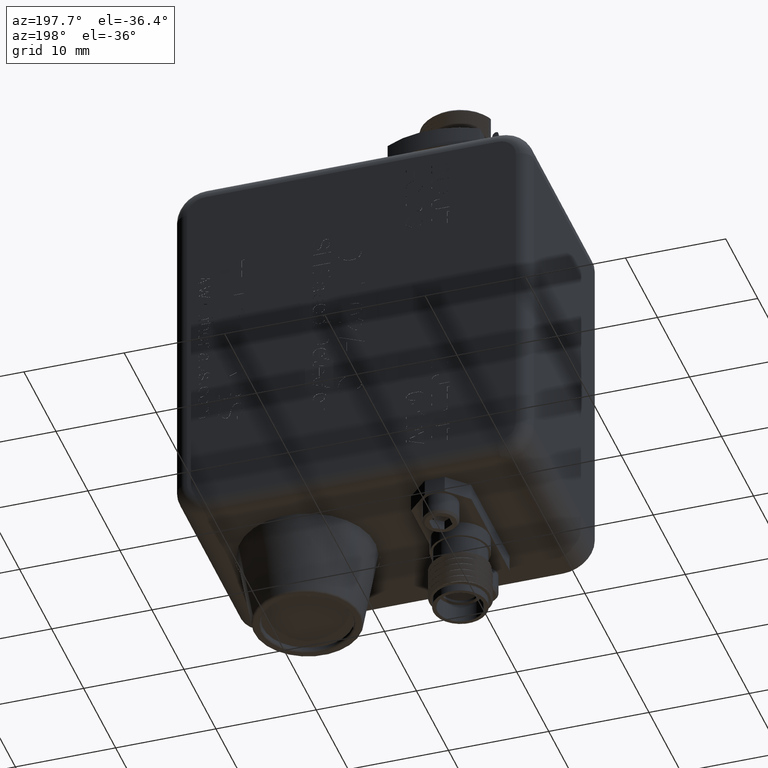
[diagram: clean part render]
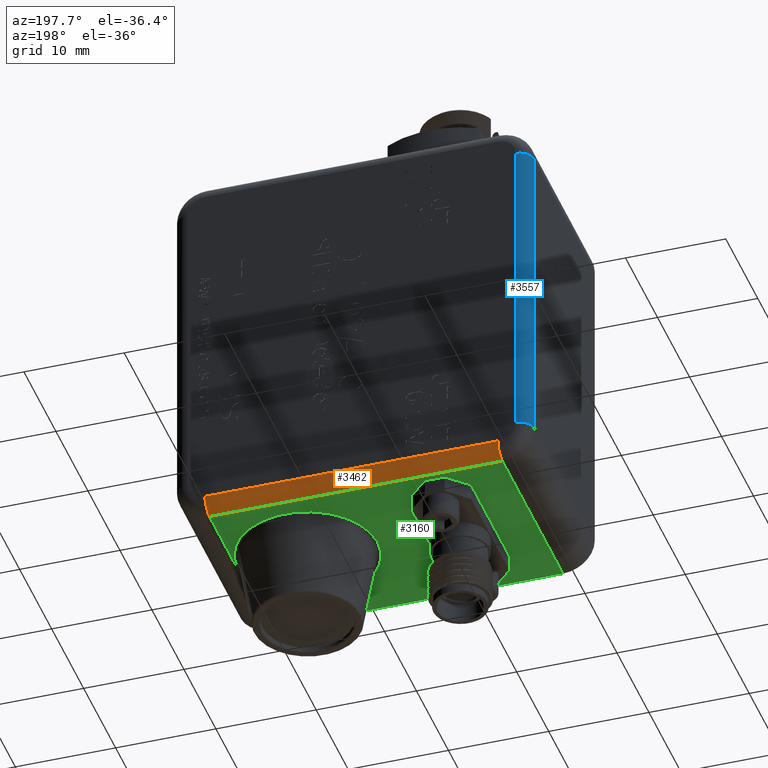
[diagram: same view with three faces highlighted in distinct colors, each labeled with its STEP entity id]
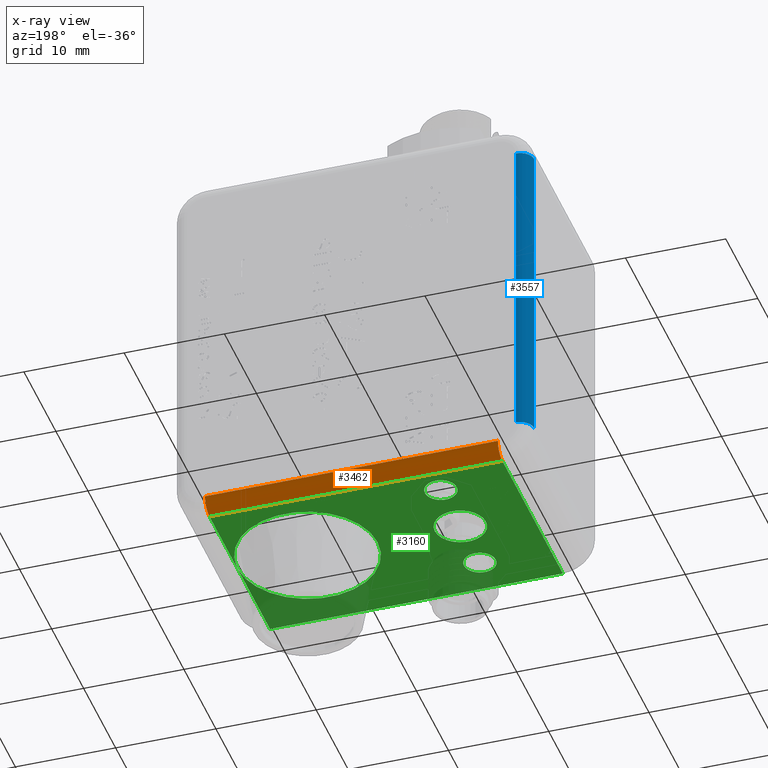
[diagram: x-ray of the same camera — body ghosted, the three highlighted faces saturated]
A machine part, auxiliary view with three faces highlighted in distinct colors.
The next image is the same camera in x-ray (body ghosted, the three faces saturated) — at least one of them is partly hidden behind the body in this view.
Their STEP definitions:

[orange] entity #3462 — the highlighted cylindrical surface (edge-blend (fillet) strip) has radius 1.397 mm, axis along (1, 0, -0).
#2883 = VERTEX_POINT ( 'NONE', #26914 ) ;
#3140 = VERTEX_POINT ( 'NONE', #27869 ) ;
#3209 = EDGE_CURVE ( 'NONE', #2883, #3140, #28323, .T. ) ;
#3391 = EDGE_CURVE ( 'NONE', #3140, #3394, #29102, .T. ) ;
#3394 = VERTEX_POINT ( 'NONE', #29155 ) ;
#3462 = ADVANCED_FACE ( 'NONE', ( #29323 ), #29386, .T. ) ;
#3463 = EDGE_LOOP ( 'NONE', ( #3466, #3472, #3476, #3478 ) ) ;
#3466 = ORIENTED_EDGE ( 'NONE', *, *, #3468, .T. ) ;
#3468 = EDGE_CURVE ( 'NONE', #2883, #3469, #29431, .T. ) ;
#3469 = VERTEX_POINT ( 'NONE', #29422 ) ;
#3472 = ORIENTED_EDGE ( 'NONE', *, *, #3474, .F. ) ;
#3474 = EDGE_CURVE ( 'NONE', #3394, #3469, #29412, .T. ) ;
#3476 = ORIENTED_EDGE ( 'NONE', *, *, #3391, .F. ) ;
#3478 = ORIENTED_EDGE ( 'NONE', *, *, #3209, .F. ) ;
#26914 = CARTESIAN_POINT ( 'NONE',  ( -0.5749999999999998400, 0.7450000000000001100, -1.499999999999999800 ) ) ;
#27869 = CARTESIAN_POINT ( 'NONE',  ( 0.5750000000000000700, 0.7450000000000001100, -1.500000000000000200 ) ) ;
#28319 = DIRECTION ( 'NONE',  ( 1.000000000000000000, 0.0000000000000000000, -1.951319995474473700E-016 ) ) ;
#28320 = VECTOR ( 'NONE', #28319, 39.37007874015748100 ) ;
#28322 = CARTESIAN_POINT ( 'NONE',  ( 0.5750000000000000700, 0.7450000000000001100, -1.500000000000000200 ) ) ;
#28323 = LINE ( 'NONE', #28322, #28320 ) ;
#29095 = DIRECTION ( 'NONE',  ( 0.0000000000000000000, 0.0000000000000000000, -1.000000000000000000 ) ) ;
#29097 = DIRECTION ( 'NONE',  ( 1.000000000000000000, 0.0000000000000000000, 0.0000000000000000000 ) ) ;
#29099 = CARTESIAN_POINT ( 'NONE',  ( 0.5750000000000000700, 0.7450000000000001100, -1.445000000000000100 ) ) ;
#29101 = AXIS2_PLACEMENT_3D ( 'NONE', #29099, #29097, #29095 ) ;
#29102 = CIRCLE ( 'NONE', #29101, 0.05500000000000009700 ) ;
#29155 = CARTESIAN_POINT ( 'NONE',  ( 0.5750000000000000700, 0.8000000000000000400, -1.445000000000000300 ) ) ;
#29323 = FACE_OUTER_BOUND ( 'NONE', #3463, .T. ) ;
#29382 = DIRECTION ( 'NONE',  ( 0.0000000000000000000, 0.0000000000000000000, -1.000000000000000000 ) ) ;
#29384 = DIRECTION ( 'NONE',  ( 1.000000000000000000, 0.0000000000000000000, -1.951319995474473700E-016 ) ) ;
#29385 = AXIS2_PLACEMENT_3D ( 'NONE', #29389, #29384, #29382 ) ;
#29386 = CYLINDRICAL_SURFACE ( 'NONE', #29385, 0.05500000000000009700 ) ;
#29389 = CARTESIAN_POINT ( 'NONE',  ( -0.7000000000000001800, 0.7450000000000001100, -1.444999999999999800 ) ) ;
#29408 = DIRECTION ( 'NONE',  ( -1.000000000000000000, 0.0000000000000000000, 1.951319995474473700E-016 ) ) ;
#29409 = VECTOR ( 'NONE', #29408, 39.37007874015748100 ) ;
#29410 = CARTESIAN_POINT ( 'NONE',  ( -0.5749999999999998400, 0.8000000000000000400, -1.444999999999999800 ) ) ;
#29412 = LINE ( 'NONE', #29410, #29409 ) ;
#29422 = CARTESIAN_POINT ( 'NONE',  ( -0.5749999999999998400, 0.8000000000000000400, -1.444999999999999800 ) ) ;
#29423 = DIRECTION ( 'NONE',  ( 0.0000000000000000000, 0.0000000000000000000, -1.000000000000000000 ) ) ;
#29425 = DIRECTION ( 'NONE',  ( 1.000000000000000000, 0.0000000000000000000, 0.0000000000000000000 ) ) ;
#29427 = CARTESIAN_POINT ( 'NONE',  ( -0.5749999999999998400, 0.7450000000000001100, -1.444999999999999800 ) ) ;
#29429 = AXIS2_PLACEMENT_3D ( 'NONE', #29427, #29425, #29423 ) ;
#29431 = CIRCLE ( 'NONE', #29429, 0.05500000000000009700 ) ;

[blue] entity #3557 — the highlighted cylindrical surface (edge-blend (fillet) strip) has radius 1.397 mm, axis along (0, 0, -1).
#2828 = VERTEX_POINT ( 'NONE', #26802 ) ;
#2912 = EDGE_CURVE ( 'NONE', #3000, #2828, #27127, .T. ) ;
#3000 = VERTEX_POINT ( 'NONE', #27559 ) ;
#3430 = EDGE_LOOP ( 'NONE', ( #3431, #3435, #3613, #3492 ) ) ;
#3431 = ORIENTED_EDGE ( 'NONE', *, *, #3543, .T. ) ;
#3435 = ORIENTED_EDGE ( 'NONE', *, *, #2912, .F. ) ;
#3492 = ORIENTED_EDGE ( 'NONE', *, *, #3494, .F. ) ;
#3494 = EDGE_CURVE ( 'NONE', #3547, #3619, #29560, .T. ) ;
#3543 = EDGE_CURVE ( 'NONE', #3547, #2828, #29718, .T. ) ;
#3547 = VERTEX_POINT ( 'NONE', #29708 ) ;
#3557 = ADVANCED_FACE ( 'NONE', ( #29757 ), #29813, .T. ) ;
#3613 = ORIENTED_EDGE ( 'NONE', *, *, #3614, .F. ) ;
#3614 = EDGE_CURVE ( 'NONE', #3619, #3000, #30302, .T. ) ;
#3619 = VERTEX_POINT ( 'NONE', #30294 ) ;
#26802 = CARTESIAN_POINT ( 'NONE',  ( -0.6999999999999999600, 0.7450000000000001100, -1.375000000000000000 ) ) ;
#27124 = DIRECTION ( 'NONE',  ( 0.0000000000000000000, 0.0000000000000000000, -1.000000000000000000 ) ) ;
#27125 = VECTOR ( 'NONE', #27124, 39.37007874015748100 ) ;
#27126 = CARTESIAN_POINT ( 'NONE',  ( -0.6999999999999999600, 0.7450000000000001100, -1.375000000000000000 ) ) ;
#27127 = LINE ( 'NONE', #27126, #27125 ) ;
#27559 = CARTESIAN_POINT ( 'NONE',  ( -0.6999999999999999600, 0.7450000000000001100, -0.1249999999999999000 ) ) ;
#29557 = DIRECTION ( 'NONE',  ( 0.0000000000000000000, 0.0000000000000000000, 1.000000000000000000 ) ) ;
#29558 = VECTOR ( 'NONE', #29557, 39.37007874015748100 ) ;
#29559 = CARTESIAN_POINT ( 'NONE',  ( -0.6449999999999999100, 0.8000000000000000400, -0.1249999999999999000 ) ) ;
#29560 = LINE ( 'NONE', #29559, #29558 ) ;
#29708 = CARTESIAN_POINT ( 'NONE',  ( -0.6449999999999998000, 0.8000000000000000400, -1.375000000000000000 ) ) ;
#29710 = DIRECTION ( 'NONE',  ( 1.000000000000000000, 0.0000000000000000000, 0.0000000000000000000 ) ) ;
#29712 = DIRECTION ( 'NONE',  ( 0.0000000000000000000, 0.0000000000000000000, 1.000000000000000000 ) ) ;
#29714 = CARTESIAN_POINT ( 'NONE',  ( -0.6449999999999998000, 0.7450000000000001100, -1.375000000000000000 ) ) ;
#29716 = AXIS2_PLACEMENT_3D ( 'NONE', #29714, #29712, #29710 ) ;
#29718 = CIRCLE ( 'NONE', #29716, 0.05500000000000002800 ) ;
#29757 = FACE_OUTER_BOUND ( 'NONE', #3430, .T. ) ;
#29808 = DIRECTION ( 'NONE',  ( -1.000000000000000000, 0.0000000000000000000, 0.0000000000000000000 ) ) ;
#29810 = DIRECTION ( 'NONE',  ( 0.0000000000000000000, 0.0000000000000000000, -1.000000000000000000 ) ) ;
#29811 = AXIS2_PLACEMENT_3D ( 'NONE', #29816, #29810, #29808 ) ;
#29813 = CYLINDRICAL_SURFACE ( 'NONE', #29811, 0.05499999999999995900 ) ;
#29816 = CARTESIAN_POINT ( 'NONE',  ( -0.6449999999999999100, 0.7450000000000001100, 0.0000000000000000000 ) ) ;
#30294 = CARTESIAN_POINT ( 'NONE',  ( -0.6449999999999999100, 0.8000000000000000400, -0.1249999999999999400 ) ) ;
#30296 = DIRECTION ( 'NONE',  ( 1.000000000000000000, 0.0000000000000000000, -9.313118160219073900E-016 ) ) ;
#30298 = DIRECTION ( 'NONE',  ( 9.313118160219085700E-016, 0.0000000000000000000, 1.000000000000000000 ) ) ;
#30300 = AXIS2_PLACEMENT_3D ( 'NONE', #30310, #30298, #30296 ) ;
#30302 = CIRCLE ( 'NONE', #30300, 0.05500000000000002800 ) ;
#30310 = CARTESIAN_POINT ( 'NONE',  ( -0.6449999999999999100, 0.7450000000000001100, -0.1249999999999999400 ) ) ;

[green] entity #3160 — the highlighted planar face has unit normal (0, 0, 1).
#2883 = VERTEX_POINT ( 'NONE', #26914 ) ;
#2888 = EDGE_CURVE ( 'NONE', #2890, #2883, #26912, .T. ) ;
#2890 = VERTEX_POINT ( 'NONE', #26901 ) ;
#2985 = EDGE_CURVE ( 'NONE', #2987, #2890, #27469, .T. ) ;
#2987 = VERTEX_POINT ( 'NONE', #27463 ) ;
#3024 = EDGE_CURVE ( 'NONE', #3026, #3027, #27773, .T. ) ;
#3026 = VERTEX_POINT ( 'NONE', #27764 ) ;
#3027 = VERTEX_POINT ( 'NONE', #27762 ) ;
#3031 = ORIENTED_EDGE ( 'NONE', *, *, #3034, .F. ) ;
#3034 = EDGE_CURVE ( 'NONE', #3027, #3026, #27757, .T. ) ;
#3038 = EDGE_LOOP ( 'NONE', ( #3041, #3095 ) ) ;
#3041 = ORIENTED_EDGE ( 'NONE', *, *, #3043, .F. ) ;
#3043 = EDGE_CURVE ( 'NONE', #3225, #3228, #27734, .T. ) ;
#3095 = ORIENTED_EDGE ( 'NONE', *, *, #3097, .F. ) ;
#3097 = EDGE_CURVE ( 'NONE', #3228, #3225, #27819, .T. ) ;
#3102 = EDGE_LOOP ( 'NONE', ( #3108, #3124 ) ) ;
#3108 = ORIENTED_EDGE ( 'NONE', *, *, #3112, .F. ) ;
#3112 = EDGE_CURVE ( 'NONE', #3114, #3119, #27791, .T. ) ;
#3114 = VERTEX_POINT ( 'NONE', #27905 ) ;
#3119 = VERTEX_POINT ( 'NONE', #27904 ) ;
#3124 = ORIENTED_EDGE ( 'NONE', *, *, #3128, .F. ) ;
#3128 = EDGE_CURVE ( 'NONE', #3119, #3114, #27892, .T. ) ;
#3130 = EDGE_LOOP ( 'NONE', ( #3135, #3183, #3189, #3193, #3199, #3203, #3208 ) ) ;
#3135 = ORIENTED_EDGE ( 'NONE', *, *, #3138, .T. ) ;
#3138 = EDGE_CURVE ( 'NONE', #3140, #3144, #27877, .T. ) ;
#3140 = VERTEX_POINT ( 'NONE', #27869 ) ;
#3144 = VERTEX_POINT ( 'NONE', #27856 ) ;
#3160 = ADVANCED_FACE ( 'NONE', ( #27926, #27925, #27923, #27922 ), #27998, .F. ) ;
#3163 = EDGE_LOOP ( 'NONE', ( #3167, #3031 ) ) ;
#3167 = ORIENTED_EDGE ( 'NONE', *, *, #3024, .F. ) ;
#3183 = ORIENTED_EDGE ( 'NONE', *, *, #3184, .F. ) ;
#3184 = EDGE_CURVE ( 'NONE', #3186, #3144, #28187, .T. ) ;
#3186 = VERTEX_POINT ( 'NONE', #28181 ) ;
#3189 = ORIENTED_EDGE ( 'NONE', *, *, #3191, .F. ) ;
#3191 = EDGE_CURVE ( 'NONE', #3144, #3186, #28168, .T. ) ;
#3193 = ORIENTED_EDGE ( 'NONE', *, *, #3196, .T. ) ;
#3196 = EDGE_CURVE ( 'NONE', #3144, #2987, #28149, .T. ) ;
#3199 = ORIENTED_EDGE ( 'NONE', *, *, #2985, .T. ) ;
#3203 = ORIENTED_EDGE ( 'NONE', *, *, #2888, .T. ) ;
#3208 = ORIENTED_EDGE ( 'NONE', *, *, #3209, .T. ) ;
#3209 = EDGE_CURVE ( 'NONE', #2883, #3140, #28323, .T. ) ;
#3225 = VERTEX_POINT ( 'NONE', #28369 ) ;
#3228 = VERTEX_POINT ( 'NONE', #28368 ) ;
#26833 = DIRECTION ( 'NONE',  ( -3.902639990948947500E-016, 0.0000000000000000000, -1.000000000000000000 ) ) ;
#26901 = CARTESIAN_POINT ( 'NONE',  ( -0.5749999999999998400, 0.0000000000000000000, -1.499999999999999800 ) ) ;
#26908 = DIRECTION ( 'NONE',  ( 0.0000000000000000000, 1.000000000000000000, 0.0000000000000000000 ) ) ;
#26909 = VECTOR ( 'NONE', #26908, 39.37007874015748100 ) ;
#26911 = CARTESIAN_POINT ( 'NONE',  ( -0.5749999999999998400, 0.8000000000000000400, -1.499999999999999800 ) ) ;
#26912 = LINE ( 'NONE', #26911, #26909 ) ;
#26914 = CARTESIAN_POINT ( 'NONE',  ( -0.5749999999999998400, 0.7450000000000001100, -1.499999999999999800 ) ) ;
#27463 = CARTESIAN_POINT ( 'NONE',  ( 0.5750000000000000700, 0.0000000000000000000, -1.500000000000000200 ) ) ;
#27464 = DIRECTION ( 'NONE',  ( -1.000000000000000000, 0.0000000000000000000, 1.951319995474473700E-016 ) ) ;
#27465 = VECTOR ( 'NONE', #27464, 39.37007874015748100 ) ;
#27467 = CARTESIAN_POINT ( 'NONE',  ( -0.6999999999999999600, 0.0000000000000000000, -1.499999999999999800 ) ) ;
#27469 = LINE ( 'NONE', #27467, #27465 ) ;
#27727 = DIRECTION ( 'NONE',  ( -1.000000000000000000, 0.0000000000000000000, 0.0000000000000000000 ) ) ;
#27729 = DIRECTION ( 'NONE',  ( -3.902639990948947500E-016, 0.0000000000000000000, -1.000000000000000000 ) ) ;
#27731 = CARTESIAN_POINT ( 'NONE',  ( -0.3000000000000003200, 0.6401574803149606700, -1.499999999999999800 ) ) ;
#27733 = AXIS2_PLACEMENT_3D ( 'NONE', #27731, #27729, #27727 ) ;
#27734 = CIRCLE ( 'NONE', #27733, 0.06249999999999997900 ) ;
#27753 = DIRECTION ( 'NONE',  ( -1.000000000000000000, 0.0000000000000000000, 0.0000000000000000000 ) ) ;
#27754 = DIRECTION ( 'NONE',  ( -3.902639990948947500E-016, 0.0000000000000000000, -1.000000000000000000 ) ) ;
#27755 = CARTESIAN_POINT ( 'NONE',  ( -0.3000000000000003200, 0.1598425196850394300, -1.499999999999999800 ) ) ;
#27756 = AXIS2_PLACEMENT_3D ( 'NONE', #27755, #27754, #27753 ) ;
#27757 = CIRCLE ( 'NONE', #27756, 0.06249999999999997900 ) ;
#27762 = CARTESIAN_POINT ( 'NONE',  ( -0.2375000000000003200, 0.1598425196850394300, -1.499999999999999800 ) ) ;
#27764 = CARTESIAN_POINT ( 'NONE',  ( -0.3625000000000003200, 0.1598425196850394300, -1.499999999999999800 ) ) ;
#27766 = DIRECTION ( 'NONE',  ( -1.000000000000000000, 0.0000000000000000000, 0.0000000000000000000 ) ) ;
#27768 = DIRECTION ( 'NONE',  ( -3.902639990948947500E-016, 0.0000000000000000000, -1.000000000000000000 ) ) ;
#27769 = CARTESIAN_POINT ( 'NONE',  ( -0.3000000000000003200, 0.1598425196850394300, -1.499999999999999800 ) ) ;
#27771 = AXIS2_PLACEMENT_3D ( 'NONE', #27769, #27768, #27766 ) ;
#27773 = CIRCLE ( 'NONE', #27771, 0.06249999999999997900 ) ;
#27789 = CARTESIAN_POINT ( 'NONE',  ( -0.3000000000000003200, 0.4000000000000000200, -1.499999999999999800 ) ) ;
#27790 = AXIS2_PLACEMENT_3D ( 'NONE', #27789, #26833, #27908 ) ;
#27791 = CIRCLE ( 'NONE', #27790, 0.09999999999999999200 ) ;
#27811 = DIRECTION ( 'NONE',  ( -1.000000000000000000, 0.0000000000000000000, 0.0000000000000000000 ) ) ;
#27814 = DIRECTION ( 'NONE',  ( -3.902639990948947500E-016, 0.0000000000000000000, -1.000000000000000000 ) ) ;
#27815 = CARTESIAN_POINT ( 'NONE',  ( -0.3000000000000003200, 0.6401574803149606700, -1.499999999999999800 ) ) ;
#27817 = AXIS2_PLACEMENT_3D ( 'NONE', #27815, #27814, #27811 ) ;
#27819 = CIRCLE ( 'NONE', #27817, 0.06249999999999997900 ) ;
#27856 = CARTESIAN_POINT ( 'NONE',  ( 0.5750000000000000700, 0.4000000000000000200, -1.500000000000000200 ) ) ;
#27869 = CARTESIAN_POINT ( 'NONE',  ( 0.5750000000000000700, 0.7450000000000001100, -1.500000000000000200 ) ) ;
#27872 = DIRECTION ( 'NONE',  ( 0.0000000000000000000, -1.000000000000000000, 0.0000000000000000000 ) ) ;
#27874 = VECTOR ( 'NONE', #27872, 39.37007874015748100 ) ;
#27875 = CARTESIAN_POINT ( 'NONE',  ( 0.5750000000000000700, 0.8000000000000000400, -1.500000000000000200 ) ) ;
#27877 = LINE ( 'NONE', #27875, #27874 ) ;
#27886 = DIRECTION ( 'NONE',  ( -1.000000000000000000, 0.0000000000000000000, 0.0000000000000000000 ) ) ;
#27888 = DIRECTION ( 'NONE',  ( -3.902639990948947500E-016, 0.0000000000000000000, -1.000000000000000000 ) ) ;
#27889 = CARTESIAN_POINT ( 'NONE',  ( -0.3000000000000003200, 0.4000000000000000200, -1.499999999999999800 ) ) ;
#27890 = AXIS2_PLACEMENT_3D ( 'NONE', #27889, #27888, #27886 ) ;
#27892 = CIRCLE ( 'NONE', #27890, 0.09999999999999999200 ) ;
#27904 = CARTESIAN_POINT ( 'NONE',  ( -0.2000000000000003200, 0.4000000000000000200, -1.499999999999999800 ) ) ;
#27905 = CARTESIAN_POINT ( 'NONE',  ( -0.4000000000000003000, 0.4000000000000000200, -1.499999999999999800 ) ) ;
#27908 = DIRECTION ( 'NONE',  ( -1.000000000000000000, 0.0000000000000000000, 0.0000000000000000000 ) ) ;
#27922 = FACE_OUTER_BOUND ( 'NONE', #3130, .T. ) ;
#27923 = FACE_BOUND ( 'NONE', #3102, .T. ) ;
#27925 = FACE_BOUND ( 'NONE', #3038, .T. ) ;
#27926 = FACE_BOUND ( 'NONE', #3163, .T. ) ;
#27986 = DIRECTION ( 'NONE',  ( 1.000000000000000000, 0.0000000000000000000, -1.951319995474473700E-016 ) ) ;
#27988 = DIRECTION ( 'NONE',  ( 1.951319995474473700E-016, 0.0000000000000000000, 1.000000000000000000 ) ) ;
#27990 = CARTESIAN_POINT ( 'NONE',  ( -0.6999999999999999600, 0.8000000000000000400, -1.499999999999999800 ) ) ;
#27992 = AXIS2_PLACEMENT_3D ( 'NONE', #27990, #27988, #27986 ) ;
#27998 = PLANE ( 'NONE',  #27992 ) ;
#28149 = LINE ( 'NONE', #28279, #28277 ) ;
#28161 = DIRECTION ( 'NONE',  ( -1.000000000000000000, 0.0000000000000000000, 0.0000000000000000000 ) ) ;
#28163 = DIRECTION ( 'NONE',  ( -3.902639990948947500E-016, 0.0000000000000000000, -1.000000000000000000 ) ) ;
#28165 = CARTESIAN_POINT ( 'NONE',  ( 0.2999999999999997700, 0.4000000000000000200, -1.499999999999999800 ) ) ;
#28167 = AXIS2_PLACEMENT_3D ( 'NONE', #28165, #28163, #28161 ) ;
#28168 = CIRCLE ( 'NONE', #28167, 0.2750000000000000200 ) ;
#28181 = CARTESIAN_POINT ( 'NONE',  ( 0.02499999999999973400, 0.4000000000000000200, -1.499999999999999800 ) ) ;
#28182 = DIRECTION ( 'NONE',  ( -1.000000000000000000, 0.0000000000000000000, 0.0000000000000000000 ) ) ;
#28183 = DIRECTION ( 'NONE',  ( -3.902639990948947500E-016, 0.0000000000000000000, -1.000000000000000000 ) ) ;
#28184 = CARTESIAN_POINT ( 'NONE',  ( 0.2999999999999997700, 0.4000000000000000200, -1.499999999999999800 ) ) ;
#28185 = AXIS2_PLACEMENT_3D ( 'NONE', #28184, #28183, #28182 ) ;
#28187 = CIRCLE ( 'NONE', #28185, 0.2750000000000000200 ) ;
#28276 = DIRECTION ( 'NONE',  ( 0.0000000000000000000, -1.000000000000000000, 0.0000000000000000000 ) ) ;
#28277 = VECTOR ( 'NONE', #28276, 39.37007874015748100 ) ;
#28279 = CARTESIAN_POINT ( 'NONE',  ( 0.5750000000000000700, 0.8000000000000000400, -1.500000000000000200 ) ) ;
#28319 = DIRECTION ( 'NONE',  ( 1.000000000000000000, 0.0000000000000000000, -1.951319995474473700E-016 ) ) ;
#28320 = VECTOR ( 'NONE', #28319, 39.37007874015748100 ) ;
#28322 = CARTESIAN_POINT ( 'NONE',  ( 0.5750000000000000700, 0.7450000000000001100, -1.500000000000000200 ) ) ;
#28323 = LINE ( 'NONE', #28322, #28320 ) ;
#28368 = CARTESIAN_POINT ( 'NONE',  ( -0.2375000000000003200, 0.6401574803149606700, -1.499999999999999800 ) ) ;
#28369 = CARTESIAN_POINT ( 'NONE',  ( -0.3625000000000003200, 0.6401574803149606700, -1.499999999999999800 ) ) ;